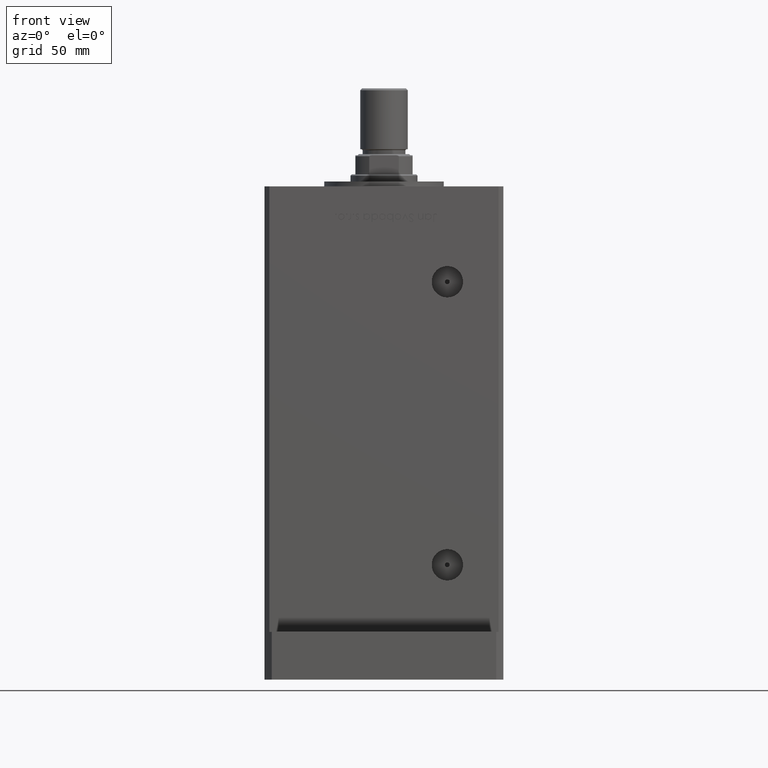
[diagram: clean part render]
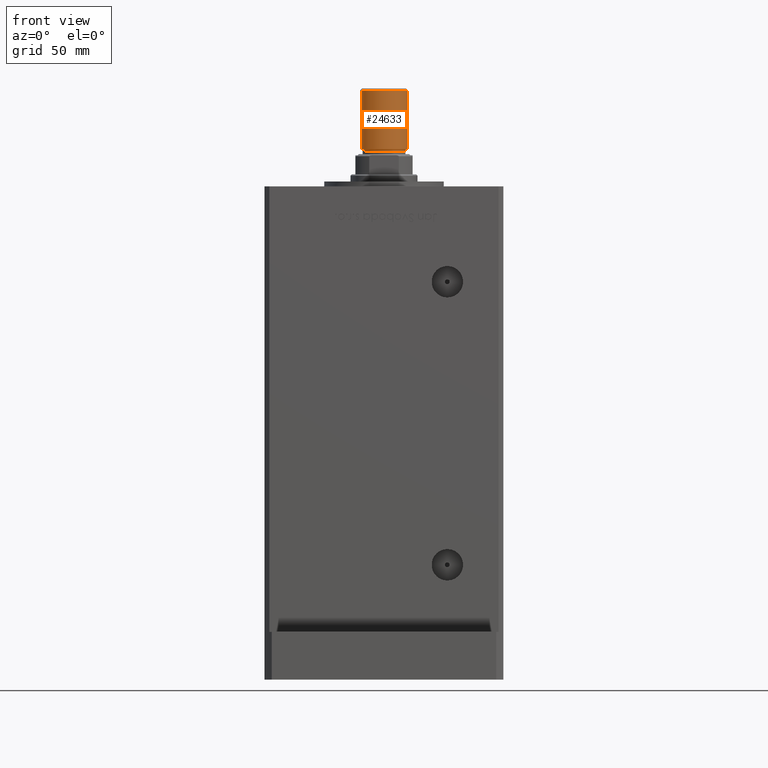
[diagram: same view with one face highlighted and labeled with its STEP entity id]
A machine part, front view. The second image highlights one B-rep face of the part: STEP entity #24633.
In plain terms, the highlighted cylindrical surface (edge-blend (fillet) strip) has radius 10 mm, axis along (0, 0, 1).
Its self-contained STEP definition (entity closure, byte-faithful):
#1478 = AXIS2_PLACEMENT_3D ( 'NONE', #15636, #16654, #50036 ) ;
#2999 = ORIENTED_EDGE ( 'NONE', *, *, #39746, .T. ) ;
#3824 = DIRECTION ( 'NONE',  ( -0.000000000000000000, -0.000000000000000000, 1.000000000000000000 ) ) ;
#4114 = CARTESIAN_POINT ( 'NONE',  ( 10.00000000000000000, 1.224646799147353256E-15, 0.7999999999999986011 ) ) ;
#6148 = CARTESIAN_POINT ( 'NONE',  ( -10.00000000000000000, 0.000000000000000000, 25.50000000000000000 ) ) ;
#7849 = VERTEX_POINT ( 'NONE', #51905 ) ;
#9301 = EDGE_LOOP ( 'NONE', ( #21096, #47360, #2999, #48951 ) ) ;
#13124 = VERTEX_POINT ( 'NONE', #17676 ) ;
#13249 = DIRECTION ( 'NONE',  ( -0.000000000000000000, -0.000000000000000000, -1.000000000000000000 ) ) ;
#15562 = VERTEX_POINT ( 'NONE', #4114 ) ;
#15636 = CARTESIAN_POINT ( 'NONE',  ( 0.000000000000000000, 0.000000000000000000, 25.50000000000000000 ) ) ;
#16654 = DIRECTION ( 'NONE',  ( -0.000000000000000000, -0.000000000000000000, -1.000000000000000000 ) ) ;
#17676 = CARTESIAN_POINT ( 'NONE',  ( -10.00000000000000000, 0.000000000000000000, 0.7999999999999986011 ) ) ;
#20193 = AXIS2_PLACEMENT_3D ( 'NONE', #29021, #25454, #45980 ) ;
#20543 = CARTESIAN_POINT ( 'NONE',  ( 0.000000000000000000, 0.000000000000000000, 0.7999999999999986011 ) ) ;
#20678 = AXIS2_PLACEMENT_3D ( 'NONE', #20543, #3824, #33121 ) ;
#21096 = ORIENTED_EDGE ( 'NONE', *, *, #45801, .F. ) ;
#22022 = CARTESIAN_POINT ( 'NONE',  ( 10.00000000000000000, 1.224646799147353256E-15, 25.50000000000000000 ) ) ;
#23370 = EDGE_CURVE ( 'NONE', #13124, #15562, #39904, .T. ) ;
#24633 = ADVANCED_FACE ( 'NONE', ( #25948 ), #54132, .T. ) ;
#25454 = DIRECTION ( 'NONE',  ( 0.000000000000000000, 0.000000000000000000, 1.000000000000000000 ) ) ;
#25948 = FACE_OUTER_BOUND ( 'NONE', #9301, .T. ) ;
#29021 = CARTESIAN_POINT ( 'NONE',  ( 0.000000000000000000, 0.000000000000000000, 25.50000000000000000 ) ) ;
#32110 = VERTEX_POINT ( 'NONE', #50591 ) ;
#33121 = DIRECTION ( 'NONE',  ( 1.000000000000000000, 0.000000000000000000, 0.000000000000000000 ) ) ;
#39746 = EDGE_CURVE ( 'NONE', #7849, #13124, #51344, .T. ) ;
#39904 = CIRCLE ( 'NONE', #20678, 10.00000000000000000 ) ;
#42821 = VECTOR ( 'NONE', #47231, 1000.000000000000000 ) ;
#43787 = CIRCLE ( 'NONE', #20193, 10.00000000000000000 ) ;
#43920 = EDGE_CURVE ( 'NONE', #7849, #32110, #43787, .T. ) ;
#45801 = EDGE_CURVE ( 'NONE', #32110, #15562, #50755, .T. ) ;
#45980 = DIRECTION ( 'NONE',  ( 1.000000000000000000, 0.000000000000000000, 0.000000000000000000 ) ) ;
#46496 = VECTOR ( 'NONE', #13249, 1000.000000000000000 ) ;
#47231 = DIRECTION ( 'NONE',  ( -0.000000000000000000, -0.000000000000000000, -1.000000000000000000 ) ) ;
#47360 = ORIENTED_EDGE ( 'NONE', *, *, #43920, .F. ) ;
#48951 = ORIENTED_EDGE ( 'NONE', *, *, #23370, .T. ) ;
#50036 = DIRECTION ( 'NONE',  ( -1.000000000000000000, 0.000000000000000000, 0.000000000000000000 ) ) ;
#50591 = CARTESIAN_POINT ( 'NONE',  ( 10.00000000000000000, 1.224646799147353256E-15, 25.50000000000000000 ) ) ;
#50755 = LINE ( 'NONE', #22022, #46496 ) ;
#51344 = LINE ( 'NONE', #6148, #42821 ) ;
#51905 = CARTESIAN_POINT ( 'NONE',  ( -10.00000000000000000, 0.000000000000000000, 25.50000000000000000 ) ) ;
#54132 = CYLINDRICAL_SURFACE ( 'NONE', #1478, 10.00000000000000000 ) ;